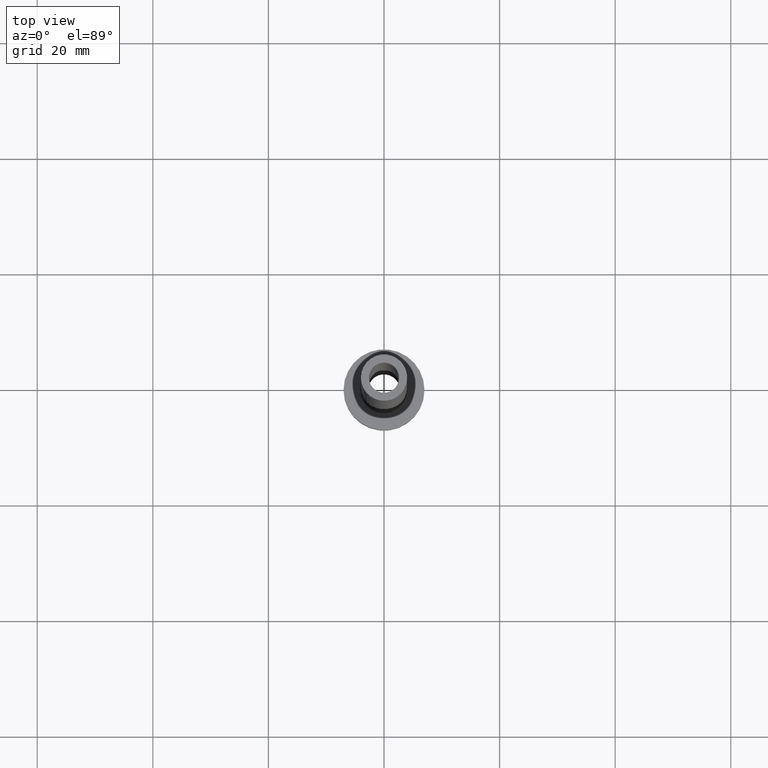
[diagram: clean part render]
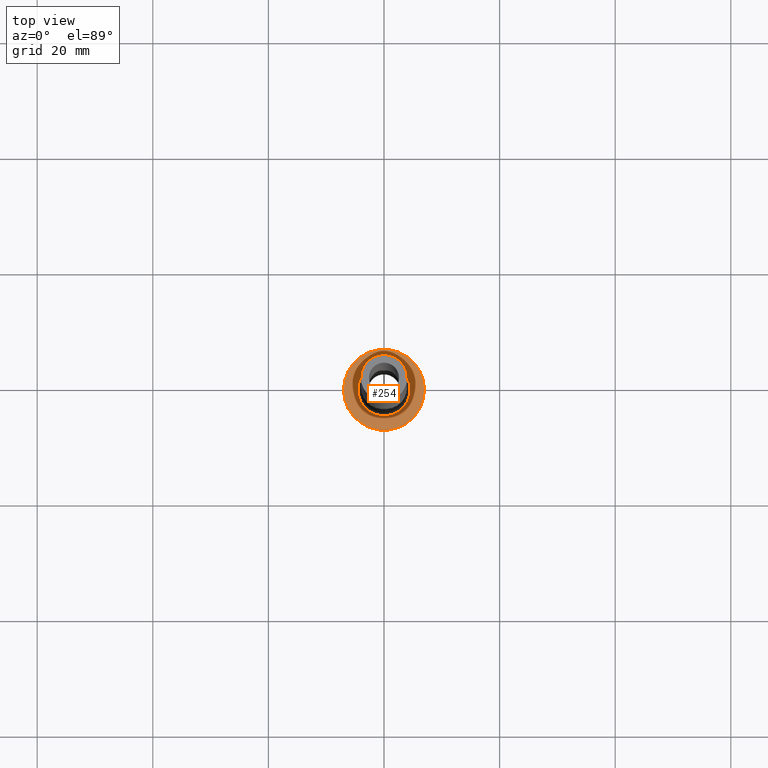
[diagram: same view with one face highlighted and labeled with its STEP entity id]
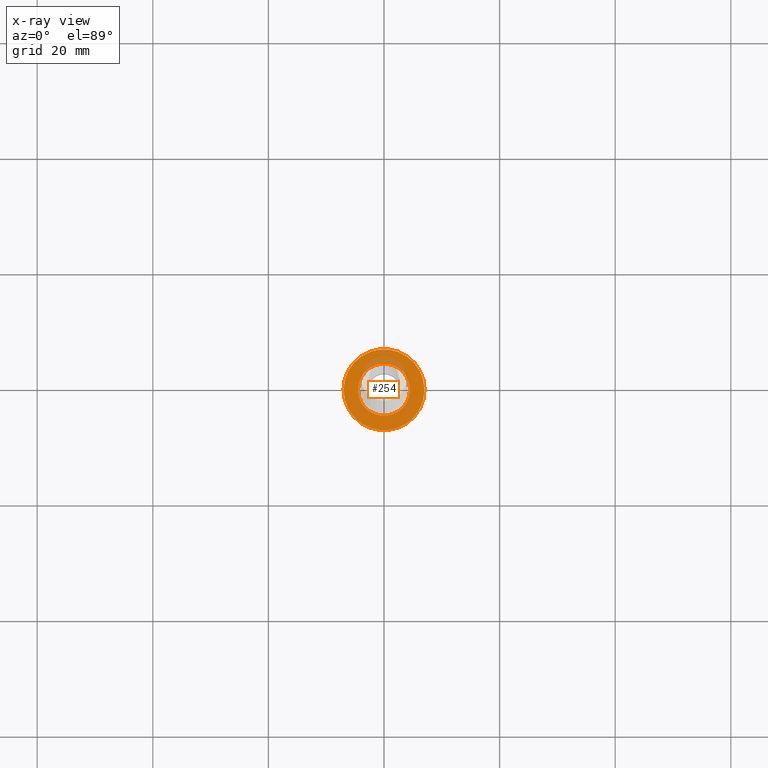
[diagram: x-ray of the same camera — body ghosted, the highlighted face saturated]
A machine part, top view. The second image highlights one B-rep face of the part: STEP entity #254.
The next image is the same camera in x-ray: the body ghosted, the highlighted face saturated — about 13% of this face is hidden behind the body in this view.
In plain terms, the highlighted planar face has unit normal (0, 0, 1).
Its self-contained STEP definition (entity closure, byte-faithful):
#5 = CARTESIAN_POINT ( 'NONE',  ( 0.000000000000000000, 0.000000000000000000, 5.000000000000000000 ) ) ;
#17 = DIRECTION ( 'NONE',  ( 1.000000000000000000, 0.000000000000000000, 0.000000000000000000 ) ) ;
#22 = DIRECTION ( 'NONE',  ( -0.000000000000000000, -0.000000000000000000, -1.000000000000000000 ) ) ;
#33 = FACE_OUTER_BOUND ( 'NONE', #245, .T. ) ;
#38 = ORIENTED_EDGE ( 'NONE', *, *, #399, .T. ) ;
#54 = CIRCLE ( 'NONE', #310, 7.000000000000000000 ) ;
#60 = CARTESIAN_POINT ( 'NONE',  ( 0.000000000000000000, 0.000000000000000000, 5.000000000000000000 ) ) ;
#69 = EDGE_LOOP ( 'NONE', ( #247, #215 ) ) ;
#89 = AXIS2_PLACEMENT_3D ( 'NONE', #320, #22, #138 ) ;
#94 = DIRECTION ( 'NONE',  ( -0.000000000000000000, -0.000000000000000000, -1.000000000000000000 ) ) ;
#99 = DIRECTION ( 'NONE',  ( 0.000000000000000000, 0.000000000000000000, 1.000000000000000000 ) ) ;
#111 = ORIENTED_EDGE ( 'NONE', *, *, #341, .T. ) ;
#114 = CIRCLE ( 'NONE', #89, 4.500000000000000888 ) ;
#130 = DIRECTION ( 'NONE',  ( 1.000000000000000000, 0.000000000000000000, 0.000000000000000000 ) ) ;
#138 = DIRECTION ( 'NONE',  ( 1.000000000000000000, 0.000000000000000000, 0.000000000000000000 ) ) ;
#149 = CARTESIAN_POINT ( 'NONE',  ( -4.500000000000000888, 5.510910596163088569E-16, 5.000000000000002665 ) ) ;
#154 = EDGE_CURVE ( 'NONE', #428, #293, #114, .T. ) ;
#169 = AXIS2_PLACEMENT_3D ( 'NONE', #273, #212, #130 ) ;
#170 = VERTEX_POINT ( 'NONE', #278 ) ;
#175 = DIRECTION ( 'NONE',  ( 0.000000000000000000, 0.000000000000000000, 1.000000000000000000 ) ) ;
#212 = DIRECTION ( 'NONE',  ( 0.000000000000000000, 0.000000000000000000, 1.000000000000000000 ) ) ;
#215 = ORIENTED_EDGE ( 'NONE', *, *, #352, .T. ) ;
#245 = EDGE_LOOP ( 'NONE', ( #38, #111 ) ) ;
#247 = ORIENTED_EDGE ( 'NONE', *, *, #154, .T. ) ;
#254 = ADVANCED_FACE ( 'NONE', ( #403, #33 ), #326, .T. ) ;
#273 = CARTESIAN_POINT ( 'NONE',  ( 0.000000000000000000, 0.000000000000000000, 5.000000000000000000 ) ) ;
#278 = CARTESIAN_POINT ( 'NONE',  ( -7.000000000000000000, 0.000000000000000000, 5.000000000000000000 ) ) ;
#293 = VERTEX_POINT ( 'NONE', #149 ) ;
#310 = AXIS2_PLACEMENT_3D ( 'NONE', #60, #99, #316 ) ;
#316 = DIRECTION ( 'NONE',  ( 1.000000000000000000, 0.000000000000000000, 0.000000000000000000 ) ) ;
#320 = CARTESIAN_POINT ( 'NONE',  ( 0.000000000000000000, 0.000000000000000000, 5.000000000000000000 ) ) ;
#323 = AXIS2_PLACEMENT_3D ( 'NONE', #388, #94, #17 ) ;
#326 = PLANE ( 'NONE',  #329 ) ;
#329 = AXIS2_PLACEMENT_3D ( 'NONE', #5, #175, #365 ) ;
#341 = EDGE_CURVE ( 'NONE', #385, #170, #54, .T. ) ;
#350 = CIRCLE ( 'NONE', #323, 4.500000000000000888 ) ;
#352 = EDGE_CURVE ( 'NONE', #293, #428, #350, .T. ) ;
#365 = DIRECTION ( 'NONE',  ( 1.000000000000000000, 0.000000000000000000, -0.000000000000000000 ) ) ;
#382 = CIRCLE ( 'NONE', #169, 7.000000000000000000 ) ;
#385 = VERTEX_POINT ( 'NONE', #424 ) ;
#388 = CARTESIAN_POINT ( 'NONE',  ( 0.000000000000000000, 0.000000000000000000, 5.000000000000000000 ) ) ;
#399 = EDGE_CURVE ( 'NONE', #170, #385, #382, .T. ) ;
#403 = FACE_BOUND ( 'NONE', #69, .T. ) ;
#413 = CARTESIAN_POINT ( 'NONE',  ( 4.500000000000000888, 0.000000000000000000, 5.000000000000002665 ) ) ;
#424 = CARTESIAN_POINT ( 'NONE',  ( 7.000000000000000000, 8.572527594031473190E-16, 5.000000000000000000 ) ) ;
#428 = VERTEX_POINT ( 'NONE', #413 ) ;